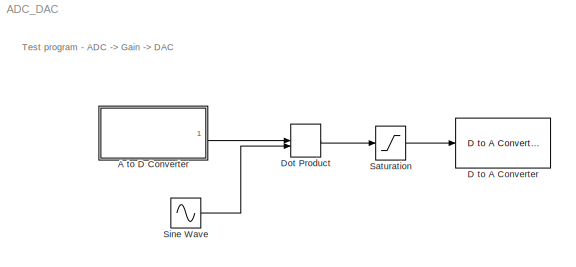
MODEL ADC_DAC
KIND model
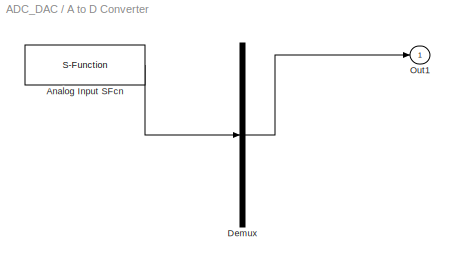
BLOCK [SubSystem] A to D Converter
  Ports = [0, 1]
  RequestExecContextInheritance = off
  SID = 9
  ShowPortLabels = none
  Tag = mcTarget_adc
BLOCK [S-Function] A to D Converter/Analog Input SFcn
  EnableBusSupport = off
  FunctionName = adc_sfcn_9S12
  Parameters = bank-1, firstChannel, numChannels, use10bits-1, normalize, sampletime
  Ports = [0, 1]
  SFcnIsStateOwnerBlock = off
  SFunctionDeploymentMode = off
  SID = 9:10
  Tag = mcTarget_adc
BLOCK [Demux] A to D Converter/Demux
  Outputs = 1
  Ports = [1, 1]
  SID = 9:11
BLOCK [Outport] A to D Converter/Out1
  IconDisplay = Port number
  SID = 9:12
BLOCK [Reference] D to A Converter  REF=mc9s12tool/D to A Converter
  FunctionWithSeparateData = off
  Ports = [1]
  RTWMemSecDataConstants = Inherit from model
  RTWMemSecDataInternal = Inherit from model
  RTWMemSecDataParameters = Inherit from model
  RTWMemSecFuncExecute = Inherit from model
  RTWMemSecFuncInitTerm = Inherit from model
  SID = 2
  ShowPortLabels = FromPortIcon
  SourceBlock = mc9s12tool/D to A Converter
  SourceType = Unknown
  SystemSampleTime = -1
  Tag = mcTarget_dac
  Vsat = 5
  dac_channel = 0
  sampletime = 0.01
BLOCK [DotProduct] Dot Product
  OutDataTypeStr = Inherit: Inherit via internal rule
  SID = 3
BLOCK [Saturate] Saturation
  InputPortMap = u0
  LowerLimit = 0
  Ports = [1, 1]
  SID = 4
  UpperLimit = 5
BLOCK [Sin] Sine Wave
  Bias = 0.5
  Frequency = 31.4
  Ports = [0, 1]
  SID = 5
  SampleTime = 0
ANNOTATION (root): Test program - ADC -> Gain -> DAC
LINE A to D Converter/Analog Input SFcn:1 -> A to D Converter/Demux:1
LINE A to D Converter/Demux:1 -> A to D Converter/Out1:1
LINE A to D Converter:1 -> Dot Product:1
LINE Dot Product:1 -> Saturation:1
LINE Saturation:1 -> D to A Converter:1
LINE Sine Wave:1 -> Dot Product:2
